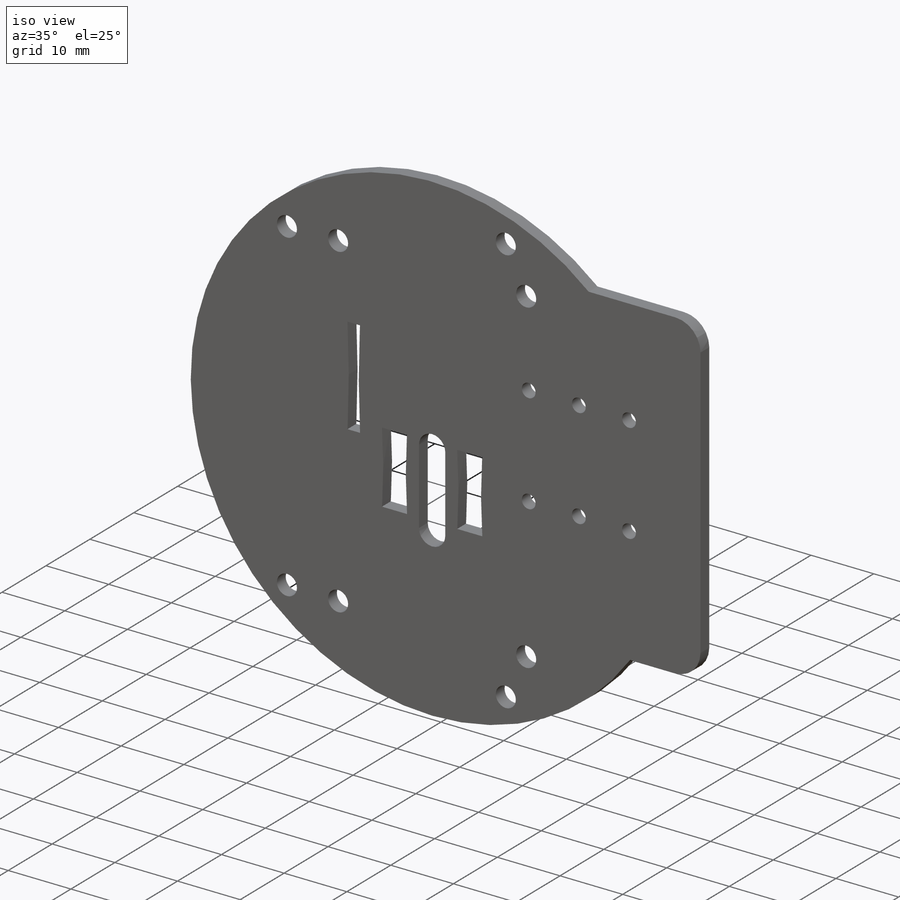
[diagram: iso view]
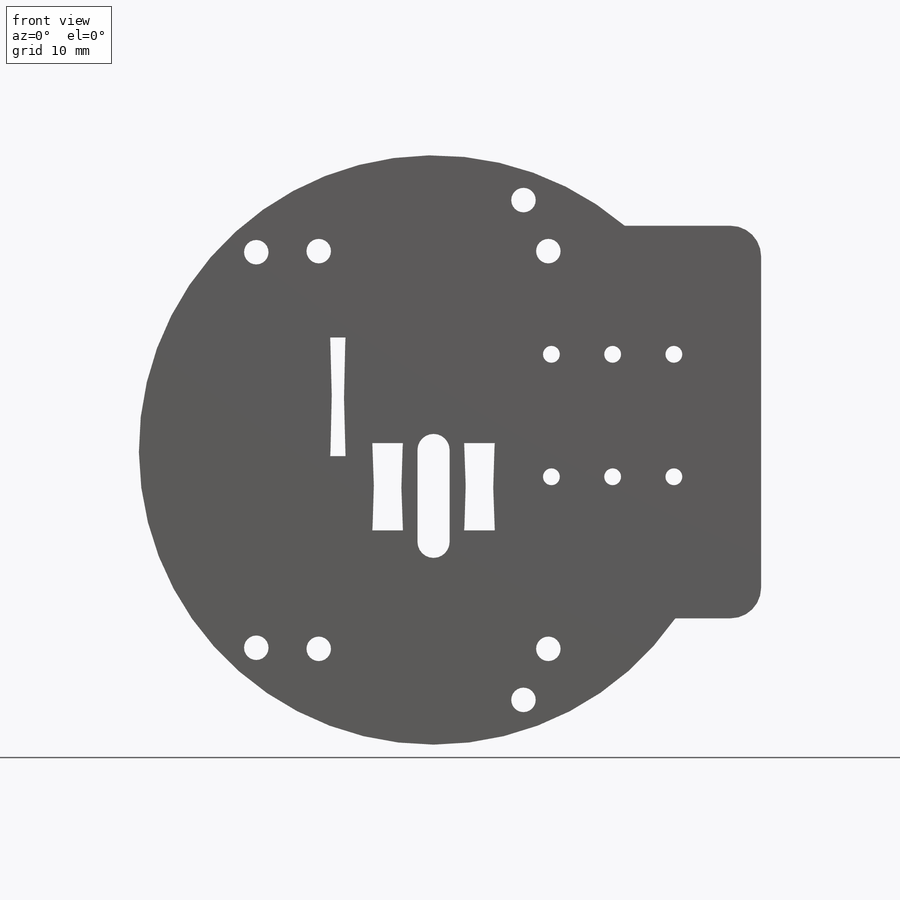
[diagram: front view]
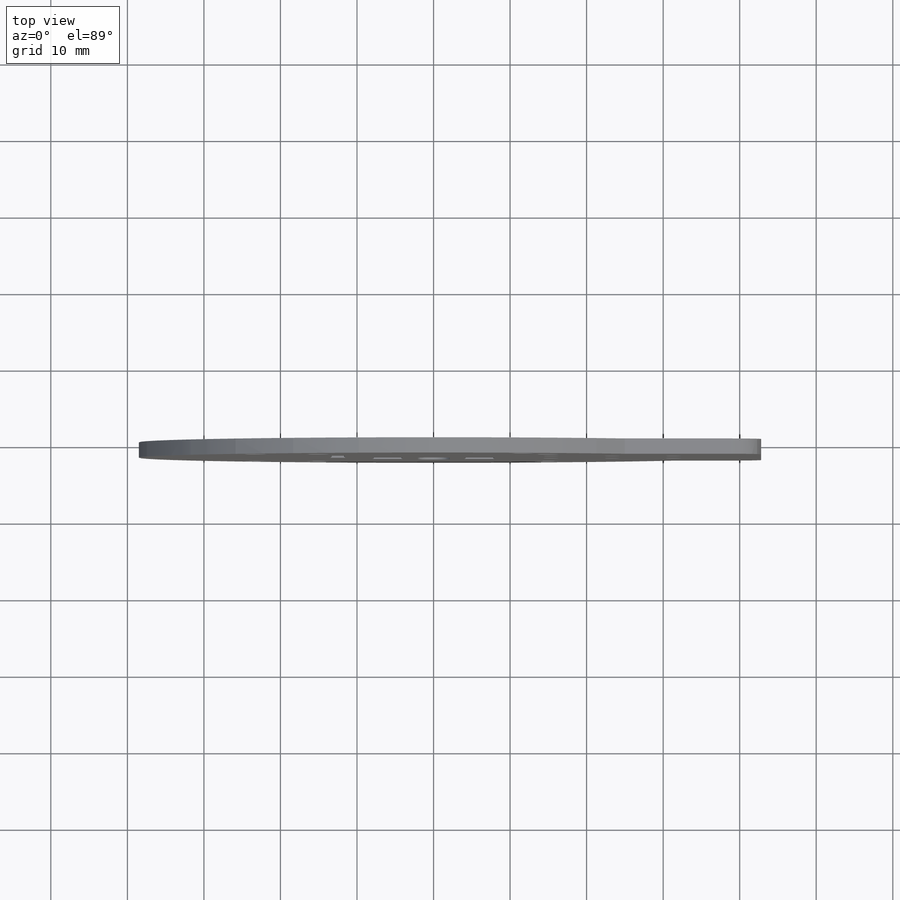
[diagram: top view]
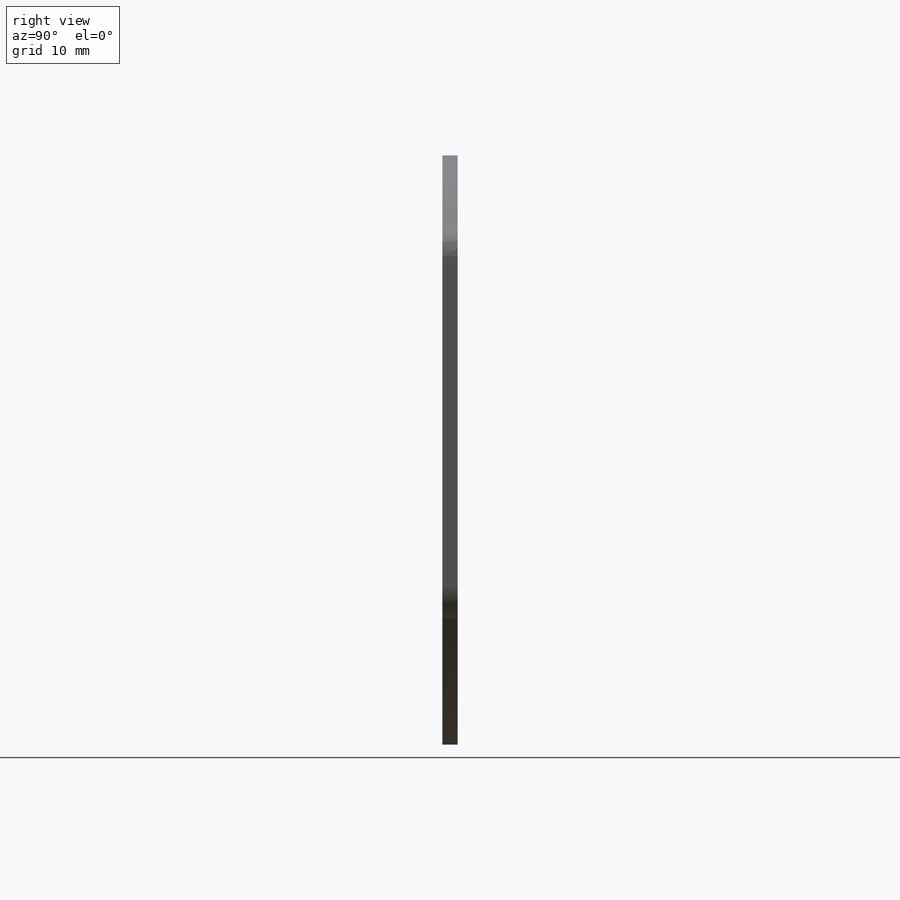
[diagram: right view]
SOLIDWORKS PART (.sldprt)
format: sldprt  version: not decoded by parser v0  size: 335,872 bytes
history: native  units: mm
features: sketch x4, cut_extrude x3, material x1, extrude x1, fillet x1 + 1 further entry (+17 scaffold rows collapsed; 3 parser-record rows omitted)
feature tree (31):
  scaffold x17  (default folders/planes/origin — collapsed)
  material  "Material <not specified>"
  "RobotHandParameters"
  parser-record x3  (decoder bookkeeping rows leaked as tree rows — omitted from the tree; the rows remain in map.json)
  sketch  "Sketch1"  dims[c1.D1=77.0mm c1.D2=60.0mm c1.D3=3.2mm c1.D5=~3.003246mm c1.D8=69.4mm c1.D18=2.0mm c2.D8=69.4mm c2.D4=15.0mm c2.D5=10.0mm c2.D6=4.2mm c2.D7=2.0mm c3.D5=2.0mm c3.D4=15.0mm c3.D9=25.84mm c3.D10=32.65mm c3.D11=2.0mm c3.D12=11.5mm c3.D13=8.0mm c3.D14=15.5mm c3.D15=0.8mm c3.D16=~10.83475mm c3.D17=~7.314218mm c3.D19=3.5mm c3.D20=15.41mm c4.D16=16.0mm c4.D17=25.4mm c4.D21=4.0mm c4.D22=5.81mm c4.D23=21.0mm c4.D24=6.0mm c4.D25=8.0mm c4.D26=2.0mm c4.D11=2.0mm c4.D12=15.5mm c4.D13=11.5mm c4.D14=0.8mm c4.D8=42.8mm c4.D9=50.5mm c4.D10=22.0mm c5.D9=29.3mm c5.D11=2.25mm c5.D12=11.4mm c5.D13=4.0mm c6.D11=6.0mm c6.D14=4.8mm c6.D5=42.8mm c6.D7=12.0mm c6.D8=0.2mm c6.D15=12.0mm]
  extrude  "Bottom Plate"  Depth=2mm
  sketch  "Sketch6"  dims[c1.D1=2.0mm c1.D2=15.5mm c1.D3=0.8mm c1.D4=12.5mm c2.D3=6.95mm c2.D5=0.2mm]
  cut_extrude  "PCB Mount"  [1 undecoded]
  sketch  "Sketch7"  dims[D1=2.2mm D2=16.0mm D3=3.5mm D4=15.4mm D5=16.8mm]
  cut_extrude  "Servo Base Holes"  [1 undecoded]
  sketch  "Sketch4"  dims[D1=69.4mm D2=3.2mm D3=25.84mm D4=32.65mm]
  cut_extrude  "Holes of Flange Cooupling"  [1 undecoded]
  fillet  "Bottom Plate Contouring"  Radius=4mm
decode coverage: 6 of 9 modeling features carry decoded parameters; 1 rows unclassified (native names shown)
note: ~ marks probable driven/reference dimensions
note: 3 parameter values undecoded
summary: no parameter record found for 3 features
note: suppression state not decoded; provenance and decode notes live in map.json
